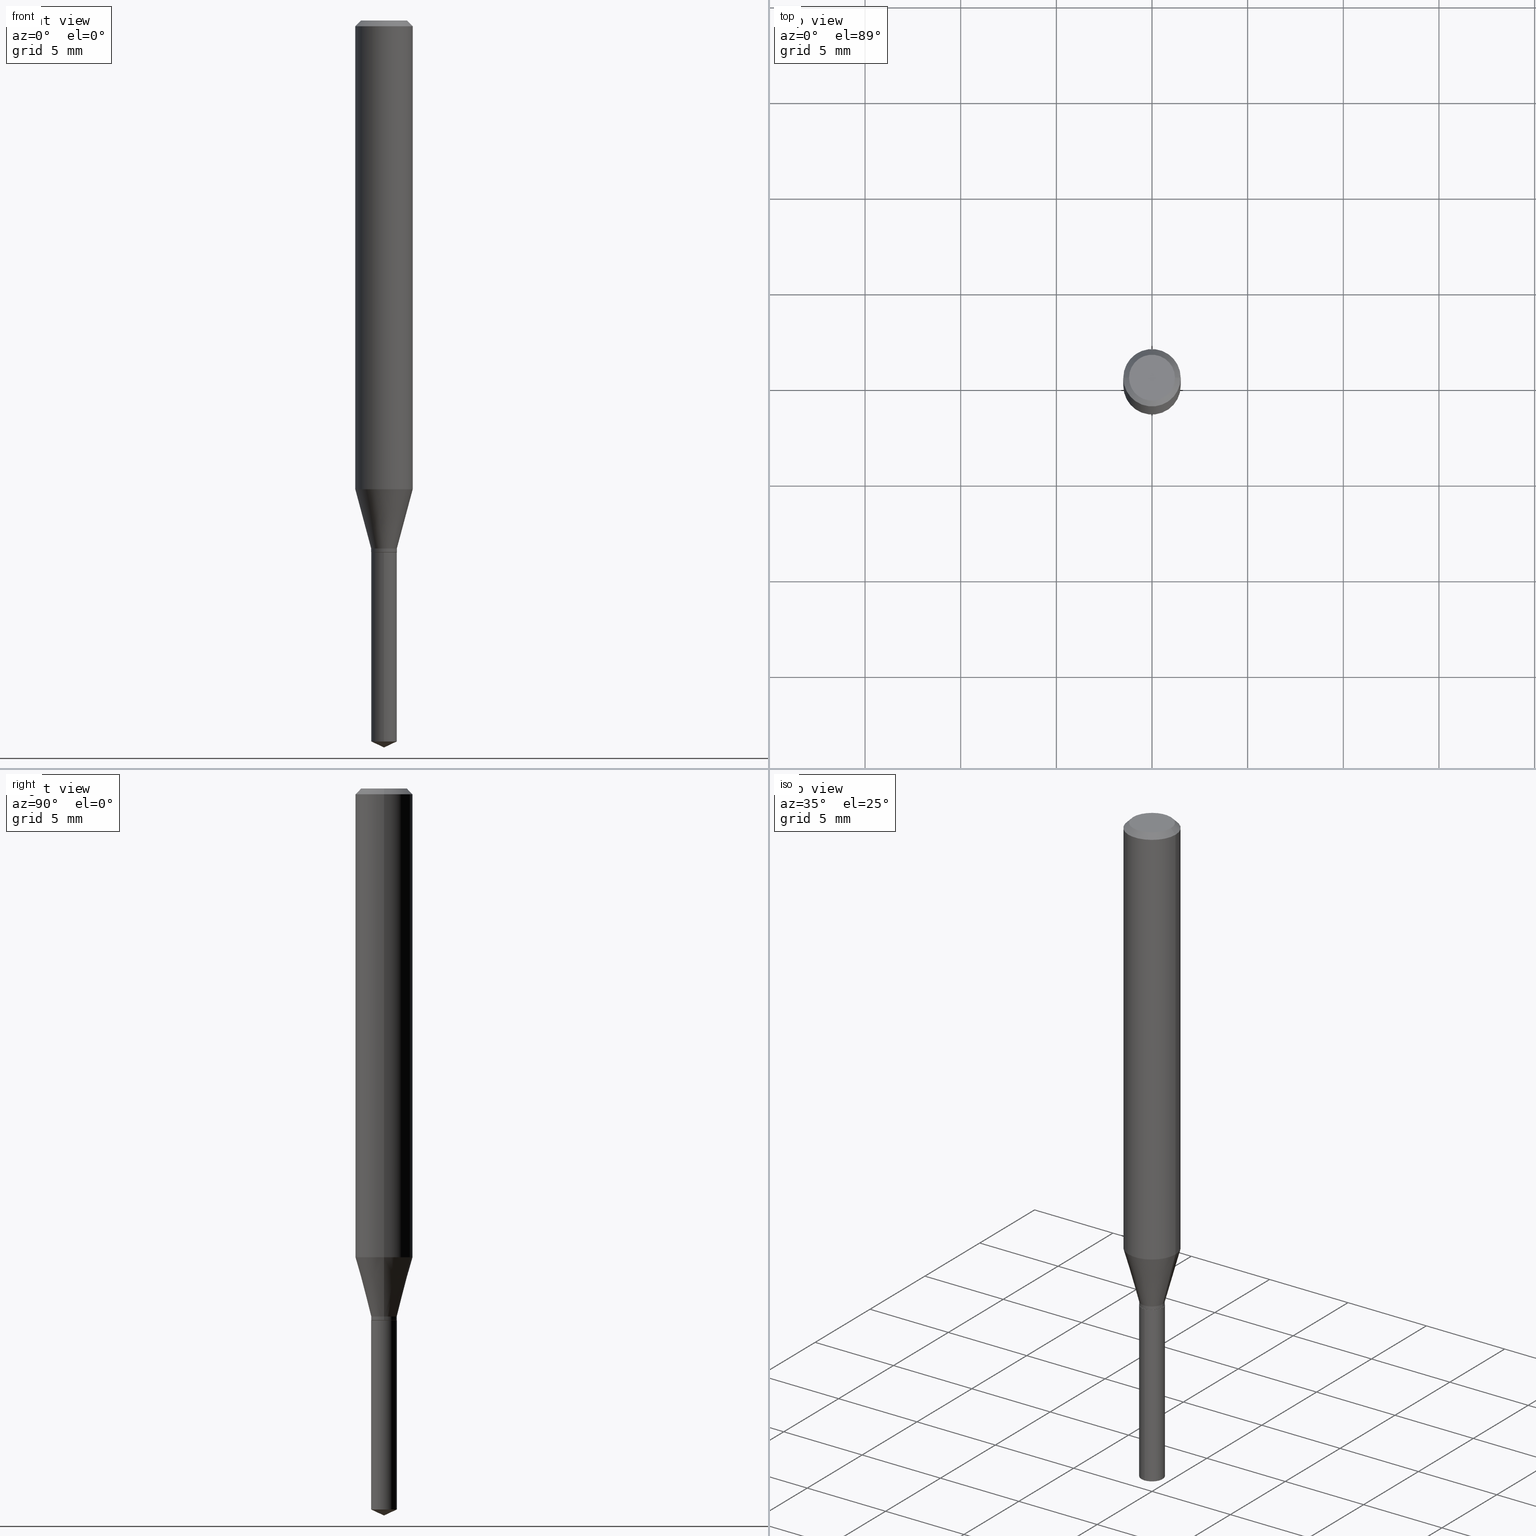
[diagram: canonical four-view strip — front | top / right | iso, engineering-drawing reading convention]
A machine part, canonical four-view strip (front | top / right | iso — engineering-drawing reading convention). The complete STEP part file that produces these views, byte-faithful:
ISO-10303-21;
HEADER;
FILE_DESCRIPTION (( 'STEP AP203' ),
    '1' );
FILE_NAME ('07865.STEP',
    '2024-04-24T04:50:09',
    ( '' ),
    ( '' ),
    'SwSTEP 2.0',
    'SolidWorks 2023',
    '' );
FILE_SCHEMA (( 'CONFIG_CONTROL_DESIGN' ));
ENDSEC;

DATA;
#1 = AXIS2_PLACEMENT_3D ( 'NONE', #205, #361, #3 ) ;
#2 = LOCAL_TIME ( 0, 50, 8.000000000000000000, #82 ) ;
#3 = DIRECTION ( 'NONE',  ( -6.982962677686267499E-15, -1.000000000000000000, 3.520397390770424288E-15 ) ) ;
#4 = ORIENTED_EDGE ( 'NONE', *, *, #441, .F. ) ;
#5 = ORIENTED_EDGE ( 'NONE', *, *, #351, .F. ) ;
#6 = APPLICATION_CONTEXT ( 'configuration controlled 3d designs of mechanical parts and assemblies' ) ;
#7 = DIRECTION ( 'NONE',  ( -2.445468806185136597E-29, 3.491481338843145583E-15, 1.000000000000000000 ) ) ;
#8 = APPROVAL_DATE_TIME ( #372, #383 ) ;
#9 = AXIS2_PLACEMENT_3D ( 'NONE', #348, #12, #378 ) ;
#10 = CARTESIAN_POINT ( 'NONE',  ( 3.658664905062460986E-29, -5.223606628546217219E-15, -1.496099999999999985 ) ) ;
#11 = CARTESIAN_POINT ( 'NONE',  ( 8.265746106709734507E-48, -1.180129479067563789E-33, -3.380025165646692144E-19 ) ) ;
#12 = DIRECTION ( 'NONE',  ( -2.445470214571802116E-29, 3.491479321953280158E-15, 1.000000000000000000 ) ) ;
#13 = APPROVAL_DATE_TIME ( #472, #78 ) ;
#14 = AXIS2_PLACEMENT_3D ( 'NONE', #257, #40, #86 ) ;
#15 = ADVANCED_FACE ( 'NONE', ( #215 ), #136, .T. ) ;
#16 = FACE_OUTER_BOUND ( 'NONE', #206, .T. ) ;
#17 = ORIENTED_EDGE ( 'NONE', *, *, #412, .F. ) ;
#18 = CARTESIAN_POINT ( 'NONE',  ( 2.676565608369631794E-29, -3.821426325363822773E-15, -1.094499999999999806 ) ) ;
#19 = PERSON_AND_ORGANIZATION ( #188, #390 ) ;
#20 = CARTESIAN_POINT ( 'NONE',  ( -0.02589999999999999594, -3.637395756801957372E-15, -1.094500000000000028 ) ) ;
#21 = CARTESIAN_POINT ( 'NONE',  ( -0.02639999999999999986, -3.606260340546295139E-15, -1.086600000000000010 ) ) ;
#22 = CC_DESIGN_SECURITY_CLASSIFICATION ( #446, ( #43 ) ) ;
#23 = AXIS2_PLACEMENT_3D ( 'NONE', #106, #414, #254 ) ;
#24 = VECTOR ( 'NONE', #273, 39.37007874015748143 ) ;
#25 = CARTESIAN_POINT ( 'NONE',  ( 8.265746106709734507E-48, -1.180129479067563789E-33, -3.380025165646692144E-19 ) ) ;
#26 = ADVANCED_FACE ( 'NONE', ( #294 ), #332, .T. ) ;
#27 = DIRECTION ( 'NONE',  ( -1.000000000000000000, 6.982962677686266711E-15, 0.000000000000000000 ) ) ;
#28 = EDGE_LOOP ( 'NONE', ( #285, #357, #142, #399 ) ) ;
#29 = ORIENTED_EDGE ( 'NONE', *, *, #31, .F. ) ;
#30 =( NAMED_UNIT ( * ) PLANE_ANGLE_UNIT ( ) SI_UNIT ( $, .RADIAN. ) );
#31 = EDGE_CURVE ( 'NONE', #138, #259, #226, .T. ) ;
#32 = EDGE_LOOP ( 'NONE', ( #224, #208, #370, #435 ) ) ;
#33 = ORIENTED_EDGE ( 'NONE', *, *, #290, .F. ) ;
#34 = APPLICATION_PROTOCOL_DEFINITION ( 'international standard', 'config_control_design', 1994, #6 ) ;
#35 = EDGE_LOOP ( 'NONE', ( #214, #362, #241, #131 ) ) ;
#36 = ORIENTED_EDGE ( 'NONE', *, *, #173, .F. ) ;
#37 = CONICAL_SURFACE ( 'NONE', #258, 84.42940631927504569, 1.134464013796319115 ) ;
#38 = ADVANCED_FACE ( 'NONE', ( #317 ), #388, .T. ) ;
#39 = CARTESIAN_POINT ( 'NONE',  ( -9.261968845786000133E-28, 1.322362114038720264E-13, 37.87397874015748300 ) ) ;
#40 = DIRECTION ( 'NONE',  ( -2.445468806185136597E-29, 3.491481338843145583E-15, 1.000000000000000000 ) ) ;
#41 = EDGE_CURVE ( 'NONE', #259, #288, #442, .T. ) ;
#42 = VECTOR ( 'NONE', #354, 39.37007874015748854 ) ;
#43 = PRODUCT_DEFINITION_FORMATION_WITH_SPECIFIED_SOURCE ( 'ANY', '', #50, .NOT_KNOWN. ) ;
#44 = DIRECTION ( 'NONE',  ( 1.000000000000000000, -6.982962677686266711E-15, 0.000000000000000000 ) ) ;
#45 = FACE_OUTER_BOUND ( 'NONE', #32, .T. ) ;
#46 = CYLINDRICAL_SURFACE ( 'NONE', #242, 0.05905000000000006077 ) ;
#47 = ORIENTED_EDGE ( 'NONE', *, *, #298, .T. ) ;
#48 = EDGE_CURVE ( 'NONE', #453, #419, #473, .T. ) ;
#49 = CARTESIAN_POINT ( 'NONE',  ( 2.657246404800769118E-29, -3.793843622786962228E-15, -1.086600000000000010 ) ) ;
#50 = PRODUCT ( '07865', '07865', '', ( #245 ) ) ;
#51 = VECTOR ( 'NONE', #488, 39.37007874015748143 ) ;
#52 = SECURITY_CLASSIFICATION_LEVEL ( 'unclassified' ) ;
#53 = CARTESIAN_POINT ( 'NONE',  ( -0.02639999999999999986, 1.875832822406664480E-16, -1.298598863827294983E-30 ) ) ;
#54 = APPROVAL_DATE_TIME ( #393, #129 ) ;
#55 = CARTESIAN_POINT ( 'NONE',  ( 0.02639999999999999986, -3.978193837477879316E-15, -1.086600000000000010 ) ) ;
#56 = DIRECTION ( 'NONE',  ( 1.000000000000000000, -6.982962677686269866E-15, 0.000000000000000000 ) ) ;
#57 = EDGE_LOOP ( 'NONE', ( #98, #287, #256, #437 ) ) ;
#58 = DIRECTION ( 'NONE',  ( -2.445470214571802116E-29, 3.491479321953280158E-15, 1.000000000000000000 ) ) ;
#59 = EDGE_CURVE ( 'NONE', #443, #73, #265, .T. ) ;
#60 = ADVANCED_FACE ( 'NONE', ( #148 ), #46, .T. ) ;
#61 = CARTESIAN_POINT ( 'NONE',  ( 0.02639999999999999986, -1.843502146909174575E-16, 1.287310668810126941E-30 ) ) ;
#62 = DIRECTION ( 'NONE',  ( -2.445468806185136597E-29, 3.491481338843145583E-15, 1.000000000000000000 ) ) ;
#63 = DIRECTION ( 'NONE',  ( -2.445468806185136597E-29, 3.491481338843145583E-15, 1.000000000000000000 ) ) ;
#64 = CONICAL_SURFACE ( 'NONE', #71, 0.02639999999999999986, 0.2617993877991500740 ) ;
#65 = CARTESIAN_POINT ( 'NONE',  ( 0.02639999999999999986, -3.978193837477879316E-15, -1.086600000000000010 ) ) ;
#66 = APPROVAL_PERSON_ORGANIZATION ( #108, #129, #427 ) ;
#67 = CYLINDRICAL_SURFACE ( 'NONE', #237, 0.02639999999999999986 ) ;
#68 = DIRECTION ( 'NONE',  ( 1.000000000000000000, -6.982962677686265922E-15, 4.876176775795935793E-29 ) ) ;
#69 = LINE ( 'NONE', #61, #24 ) ;
#70 = VERTEX_POINT ( 'NONE', #451 ) ;
#71 = AXIS2_PLACEMENT_3D ( 'NONE', #49, #187, #345 ) ;
#72 = PRODUCT_RELATED_PRODUCT_CATEGORY ( 'detail', '', ( #50 ) ) ;
#73 = VERTEX_POINT ( 'NONE', #296 ) ;
#74 = UNCERTAINTY_MEASURE_WITH_UNIT (LENGTH_MEASURE( 1.000000000000000082E-05 ), #282, 'distance_accuracy_value', 'NONE');
#75 = PERSON_AND_ORGANIZATION ( #188, #390 ) ;
#76 = CARTESIAN_POINT ( 'NONE',  ( 2.676565608369632355E-29, -3.821426325363822773E-15, -1.094500000000000028 ) ) ;
#77 = EDGE_LOOP ( 'NONE', ( #406, #209, #17 ) ) ;
#78 = APPROVAL ( #349, 'UNSPECIFIED' ) ;
#79 = AXIS2_PLACEMENT_3D ( 'NONE', #297, #125, #88 ) ;
#80 = DIRECTION ( 'NONE',  ( 1.000000000000000000, -6.982962677686270655E-15, 0.000000000000000000 ) ) ;
#81 = LINE ( 'NONE', #147, #192 ) ;
#82 = COORDINATED_UNIVERSAL_TIME_OFFSET ( 5, 0, .BEHIND. ) ;
#83 = EDGE_CURVE ( 'NONE', #419, #284, #216, .T. ) ;
#84 = DIRECTION ( 'NONE',  ( -2.445470214571802116E-29, 3.491479321953280158E-15, 1.000000000000000000 ) ) ;
#85 = DIRECTION ( 'NONE',  ( -6.982962677686265133E-15, -1.000000000000000000, 5.173954533455043885E-15 ) ) ;
#86 = DIRECTION ( 'NONE',  ( 1.000000000000000000, -6.982962677686269866E-15, 0.000000000000000000 ) ) ;
#87 = PERSON_AND_ORGANIZATION_ROLE ( 'creator' ) ;
#88 = DIRECTION ( 'NONE',  ( -1.000000000000000000, 6.982962677686266711E-15, 0.000000000000000000 ) ) ;
#89 = DIRECTION ( 'NONE',  ( -2.445470214571802116E-29, 3.491479321953280158E-15, 1.000000000000000000 ) ) ;
#90 = CARTESIAN_POINT ( 'NONE',  ( 3.628561431236165561E-29, -5.180622487442780866E-15, -1.483789477824708047 ) ) ;
#91 = DIRECTION ( 'NONE',  ( -2.445468806185136597E-29, 3.491481338843145583E-15, 1.000000000000000000 ) ) ;
#92 = DIRECTION ( 'NONE',  ( 2.445468806185136597E-29, -3.491481338843145583E-15, -1.000000000000000000 ) ) ;
#93 = CARTESIAN_POINT ( 'NONE',  ( 0.02589999999999999594, -4.002285058715897643E-15, -1.094500000000000028 ) ) ;
#94 = CIRCLE ( 'NONE', #474, 0.02589999999999999594 ) ;
#95 = CARTESIAN_POINT ( 'NONE',  ( -0.05905000000000013016, -2.948826042575245259E-15, -0.9647485411328760030 ) ) ;
#96 = ADVANCED_FACE ( 'NONE', ( #336 ), #160, .T. ) ;
#97 = ORIENTED_EDGE ( 'NONE', *, *, #179, .F. ) ;
#98 = ORIENTED_EDGE ( 'NONE', *, *, #426, .F. ) ;
#99 = ORIENTED_EDGE ( 'NONE', *, *, #260, .F. ) ;
#100 = AXIS2_PLACEMENT_3D ( 'NONE', #482, #225, #309 ) ;
#101 = ORIENTED_EDGE ( 'NONE', *, *, #83, .F. ) ;
#102 = EDGE_CURVE ( 'NONE', #476, #70, #377, .T. ) ;
#103 = CARTESIAN_POINT ( 'NONE',  ( 0.000000000000000000, 0.000000000000000000, 0.000000000000000000 ) ) ;
#104 = FACE_OUTER_BOUND ( 'NONE', #247, .T. ) ;
#105 = AXIS2_PLACEMENT_3D ( 'NONE', #76, #401, #261 ) ;
#106 = CARTESIAN_POINT ( 'NONE',  ( 2.657246404800769118E-29, -3.793843622786962228E-15, -1.086600000000000010 ) ) ;
#107 = DATE_TIME_ROLE ( 'classification_date' ) ;
#108 = PERSON_AND_ORGANIZATION ( #188, #390 ) ;
#109 = CARTESIAN_POINT ( 'NONE',  ( 2.676565608369631794E-29, -3.821426325363822773E-15, -1.094499999999999806 ) ) ;
#110 = SHAPE_DEFINITION_REPRESENTATION ( #313, #250 ) ;
#111 = CIRCLE ( 'NONE', #376, 0.02639999999999999986 ) ;
#112 = APPROVAL_PERSON_ORGANIZATION ( #422, #383, #331 ) ;
#113 = PLANE ( 'NONE',  #137 ) ;
#114 = PERSON_AND_ORGANIZATION_ROLE ( 'design_supplier' ) ;
#115 = CARTESIAN_POINT ( 'NONE',  ( -0.05904999999999999832, -1.285242475860321155E-15, -0.01181000000000007218 ) ) ;
#116 = CALENDAR_DATE ( 2024, 24, 4 ) ;
#117 = LINE ( 'NONE', #21, #266 ) ;
#118 = CIRCLE ( 'NONE', #151, 0.04724000000000000421 ) ;
#119 = ADVANCED_FACE ( 'NONE', ( #104 ), #459, .F. ) ;
#120 = COORDINATED_UNIVERSAL_TIME_OFFSET ( 5, 0, .BEHIND. ) ;
#121 = CYLINDRICAL_SURFACE ( 'NONE', #169, 0.02639999999999999986 ) ;
#122 = DIRECTION ( 'NONE',  ( -6.982962677686265133E-15, -1.000000000000000000, 0.000000000000000000 ) ) ;
#123 = CC_DESIGN_PERSON_AND_ORGANIZATION_ASSIGNMENT ( #346, #87, ( #43 ) ) ;
#124 = CARTESIAN_POINT ( 'NONE',  ( 1.875832822406931707E-16, 0.02639999999999617999, -1.094500000000000028 ) ) ;
#125 = DIRECTION ( 'NONE',  ( 2.445468806185136597E-29, -3.491481338843145583E-15, -1.000000000000000000 ) ) ;
#126 = VERTEX_POINT ( 'NONE', #329 ) ;
#127 = ORIENTED_EDGE ( 'NONE', *, *, #290, .T. ) ;
#128 =( GEOMETRIC_REPRESENTATION_CONTEXT ( 3 ) GLOBAL_UNCERTAINTY_ASSIGNED_CONTEXT ( ( #74 ) ) GLOBAL_UNIT_ASSIGNED_CONTEXT ( ( #282, #30, #324 ) ) REPRESENTATION_CONTEXT ( 'NONE', 'WORKASPACE' ) );
#129 = APPROVAL ( #229, 'UNSPECIFIED' ) ;
#130 = ORIENTED_EDGE ( 'NONE', *, *, #465, .F. ) ;
#131 = ORIENTED_EDGE ( 'NONE', *, *, #204, .F. ) ;
#132 = DIRECTION ( 'NONE',  ( 0.000000000000000000, 0.000000000000000000, 1.000000000000000000 ) ) ;
#133 = VERTEX_POINT ( 'NONE', #251 ) ;
#134 = ADVANCED_FACE ( 'NONE', ( #457 ), #37, .T. ) ;
#135 = ORIENTED_EDGE ( 'NONE', *, *, #292, .T. ) ;
#136 = CONICAL_SURFACE ( 'NONE', #320, 0.02589999999999999594, 0.7853981633972775267 ) ;
#137 = AXIS2_PLACEMENT_3D ( 'NONE', #423, #153, #307 ) ;
#138 = VERTEX_POINT ( 'NONE', #139 ) ;
#139 = CARTESIAN_POINT ( 'NONE',  ( 0.04724000000000000421, -3.852183633974369345E-16, -3.380025165621689721E-19 ) ) ;
#140 = VERTEX_POINT ( 'NONE', #369 ) ;
#141 = DIRECTION ( 'NONE',  ( -2.445468806185136597E-29, 3.491481338843145583E-15, 1.000000000000000000 ) ) ;
#142 = ORIENTED_EDGE ( 'NONE', *, *, #59, .F. ) ;
#143 = CARTESIAN_POINT ( 'NONE',  ( 2.657246404800769118E-29, -3.793843622786962228E-15, -1.086600000000000010 ) ) ;
#144 = CIRCLE ( 'NONE', #183, 0.05904999999999999832 ) ;
#145 = CC_DESIGN_APPROVAL ( #129, ( #218 ) ) ;
#146 = CC_DESIGN_PERSON_AND_ORGANIZATION_ASSIGNMENT ( #193, #308, ( #446 ) ) ;
#147 = CARTESIAN_POINT ( 'NONE',  ( -1.843502146908906609E-16, -0.02640000000000381972, -1.094499999999999806 ) ) ;
#148 = FACE_OUTER_BOUND ( 'NONE', #177, .T. ) ;
#149 = CC_DESIGN_PERSON_AND_ORGANIZATION_ASSIGNMENT ( #19, #424, ( #218 ) ) ;
#150 = CLOSED_SHELL ( 'NONE', ( #212, #134, #481, #314, #119 ) ) ;
#151 = AXIS2_PLACEMENT_3D ( 'NONE', #25, #162, #277 ) ;
#152 = DIRECTION ( 'NONE',  ( -2.445468806185136597E-29, 3.491481338843145583E-15, 1.000000000000000000 ) ) ;
#153 = DIRECTION ( 'NONE',  ( 2.438088387897960049E-29, -3.491481338843145188E-15, -1.000000000000000000 ) ) ;
#154 = COORDINATED_UNIVERSAL_TIME_OFFSET ( 5, 0, .BEHIND. ) ;
#155 = FACE_OUTER_BOUND ( 'NONE', #28, .T. ) ;
#156 = ORIENTED_EDGE ( 'NONE', *, *, #168, .F. ) ;
#157 = EDGE_CURVE ( 'NONE', #73, #443, #278, .T. ) ;
#158 = CARTESIAN_POINT ( 'NONE',  ( 1.875832822407027356E-16, 0.02639999999999481997, -1.483789477824708047 ) ) ;
#159 = DIRECTION ( 'NONE',  ( -2.445470214571802116E-29, 3.491479321953280158E-15, 1.000000000000000000 ) ) ;
#160 = CONICAL_SURFACE ( 'NONE', #23, 0.02639999999999999986, 0.2617993877991500740 ) ;
#161 = AXIS2_PLACEMENT_3D ( 'NONE', #223, #63, #432 ) ;
#162 = DIRECTION ( 'NONE',  ( -2.445468806185136597E-29, 3.491481338843145583E-15, 1.000000000000000000 ) ) ;
#163 = DIRECTION ( 'NONE',  ( 1.000000000000000000, -6.982962677686266711E-15, 0.000000000000000000 ) ) ;
#164 = ORIENTED_EDGE ( 'NONE', *, *, #323, .T. ) ;
#165 = DIRECTION ( 'NONE',  ( 0.2588190451025213501, 1.565188264969621968E-15, 0.9659258262890682012 ) ) ;
#166 = EDGE_LOOP ( 'NONE', ( #363, #47, #33, #36 ) ) ;
#167 = CARTESIAN_POINT ( 'NONE',  ( 0.05904999999999999832, -4.463468013801466955E-16, -0.01181000000000007218 ) ) ;
#168 = EDGE_CURVE ( 'NONE', #461, #126, #410, .T. ) ;
#169 = AXIS2_PLACEMENT_3D ( 'NONE', #477, #425, #202 ) ;
#170 = CC_DESIGN_APPROVAL ( #78, ( #43 ) ) ;
#171 = DIRECTION ( 'NONE',  ( -2.445468806185136597E-29, 3.491481338843145583E-15, 1.000000000000000000 ) ) ;
#172 = ORIENTED_EDGE ( 'NONE', *, *, #426, .T. ) ;
#173 = EDGE_CURVE ( 'NONE', #126, #140, #81, .T. ) ;
#174 = ORIENTED_EDGE ( 'NONE', *, *, #157, .F. ) ;
#175 = ORIENTED_EDGE ( 'NONE', *, *, #412, .T. ) ;
#176 = AXIS2_PLACEMENT_3D ( 'NONE', #392, #337, #430 ) ;
#177 = EDGE_LOOP ( 'NONE', ( #135, #326, #97, #101 ) ) ;
#178 = LENGTH_MEASURE_WITH_UNIT ( LENGTH_MEASURE( 0.02539999999999999897 ), #365 );
#179 = EDGE_CURVE ( 'NONE', #284, #288, #144, .T. ) ;
#180 = DIRECTION ( 'NONE',  ( -2.445468806185136877E-29, 3.491481338843145188E-15, 1.000000000000000000 ) ) ;
#181 = DIRECTION ( 'NONE',  ( -6.328713451373382789E-15, -0.9063077870366504918, 0.4226182617406981090 ) ) ;
#182 = AXIS2_PLACEMENT_3D ( 'NONE', #479, #91, #238 ) ;
#183 = AXIS2_PLACEMENT_3D ( 'NONE', #454, #299, #44 ) ;
#184 = APPROVAL_PERSON_ORGANIZATION ( #431, #78, #339 ) ;
#185 = ORIENTED_EDGE ( 'NONE', *, *, #173, .T. ) ;
#186 = CARTESIAN_POINT ( 'NONE',  ( 0.000000000000000000, 0.000000000000000000, 0.000000000000000000 ) ) ;
#187 = DIRECTION ( 'NONE',  ( -2.445468806185136597E-29, 3.491481338843145583E-15, 1.000000000000000000 ) ) ;
#188 = PERSON ( 'UNSPECIFIED', 'UNSPECIFIED', 'UNSPECIFIED', ('UNSPECIFIED'), ('UNSPECIFIED'), ('UNSPECIFIED') ) ;
#189 = DIRECTION ( 'NONE',  ( 0.7071067811864267805, -2.468850131080992517E-15, 0.7071067811866682540 ) ) ;
#190 = VECTOR ( 'NONE', #181, 39.37007874015748854 ) ;
#191 = DATE_AND_TIME ( #116, #201 ) ;
#192 = VECTOR ( 'NONE', #293, 39.37007874015748143 ) ;
#193 = PERSON_AND_ORGANIZATION ( #188, #390 ) ;
#194 = LINE ( 'NONE', #233, #42 ) ;
#195 = CARTESIAN_POINT ( 'NONE',  ( 2.676565608369631794E-29, -3.821426325363822773E-15, -1.094499999999999806 ) ) ;
#196 = DATE_AND_TIME ( #269, #222 ) ;
#197 = DIRECTION ( 'NONE',  ( -0.7071067811864267805, 7.493145998869918709E-15, 0.7071067811866682540 ) ) ;
#198 = DIRECTION ( 'NONE',  ( -2.445468806185136597E-29, 3.491481338843145583E-15, 1.000000000000000000 ) ) ;
#199 = AXIS2_PLACEMENT_3D ( 'NONE', #386, #152, #56 ) ;
#200 = CARTESIAN_POINT ( 'NONE',  ( 2.359262463153066323E-29, -3.368401528041585540E-15, -0.9647485411328760030 ) ) ;
#201 = LOCAL_TIME ( 0, 50, 8.000000000000000000, #467 ) ;
#202 = DIRECTION ( 'NONE',  ( 1.000000000000000000, -6.982962677686267499E-15, 4.876176775795935232E-29 ) ) ;
#203 = CARTESIAN_POINT ( 'NONE',  ( 2.676565608369631794E-29, -3.821426325363822773E-15, -1.094499999999999806 ) ) ;
#204 = EDGE_CURVE ( 'NONE', #288, #284, #207, .T. ) ;
#205 = CARTESIAN_POINT ( 'NONE',  ( -9.261968845786000133E-28, 1.322362114038720264E-13, 37.87397874015748300 ) ) ;
#206 = EDGE_LOOP ( 'NONE', ( #409, #480 ) ) ;
#207 = CIRCLE ( 'NONE', #161, 0.05904999999999999832 ) ;
#208 = ORIENTED_EDGE ( 'NONE', *, *, #157, .T. ) ;
#209 = ORIENTED_EDGE ( 'NONE', *, *, #168, .T. ) ;
#210 = PERSON_AND_ORGANIZATION_ROLE ( 'design_owner' ) ;
#211 = ORIENTED_EDGE ( 'NONE', *, *, #231, .T. ) ;
#212 = ADVANCED_FACE ( 'NONE', ( #301 ), #305, .T. ) ;
#213 = ORIENTED_EDGE ( 'NONE', *, *, #330, .F. ) ;
#214 = ORIENTED_EDGE ( 'NONE', *, *, #445, .F. ) ;
#215 = FACE_OUTER_BOUND ( 'NONE', #449, .T. ) ;
#216 = LINE ( 'NONE', #456, #374 ) ;
#217 = CIRCLE ( 'NONE', #295, 0.02639999999999999986 ) ;
#218 = PRODUCT_DEFINITION ( 'UNKNOWN', '', #43, #267 ) ;
#219 = CARTESIAN_POINT ( 'NONE',  ( 0.000000000000000000, 0.000000000000000000, 0.000000000000000000 ) ) ;
#220 = DIRECTION ( 'NONE',  ( -2.445468806185136597E-29, 3.491481338843145583E-15, 1.000000000000000000 ) ) ;
#221 = CC_DESIGN_APPROVAL ( #383, ( #446 ) ) ;
#222 = LOCAL_TIME ( 0, 50, 8.000000000000000000, #154 ) ;
#223 = CARTESIAN_POINT ( 'NONE',  ( 2.888098660104664204E-31, -4.123439461173780263E-17, -0.01181000000000007218 ) ) ;
#224 = ORIENTED_EDGE ( 'NONE', *, *, #252, .F. ) ;
#225 = DIRECTION ( 'NONE',  ( -2.445468806185136597E-29, 3.491481338843145583E-15, 1.000000000000000000 ) ) ;
#226 = CIRCLE ( 'NONE', #235, 0.04724000000000000421 ) ;
#227 = AXIS2_PLACEMENT_3D ( 'NONE', #279, #198, #316 ) ;
#228 = DIRECTION ( 'NONE',  ( -0.2588190451025213501, 5.211531920934551042E-15, 0.9659258262890682012 ) ) ;
#229 = APPROVAL_STATUS ( 'not_yet_approved' ) ;
#230 = CARTESIAN_POINT ( 'NONE',  ( 2.888098660104664204E-31, -4.123439461173780263E-17, -0.01181000000000007218 ) ) ;
#231 = EDGE_CURVE ( 'NONE', #133, #140, #411, .T. ) ;
#232 = ORIENTED_EDGE ( 'NONE', *, *, #252, .T. ) ;
#233 = CARTESIAN_POINT ( 'NONE',  ( 3.658668015054778287E-29, -5.223602213574301462E-15, -1.496099999999999985 ) ) ;
#234 = DIRECTION ( 'NONE',  ( -2.445468806185136597E-29, 3.491481338843145583E-15, 1.000000000000000000 ) ) ;
#235 = AXIS2_PLACEMENT_3D ( 'NONE', #11, #62, #471 ) ;
#236 = EDGE_CURVE ( 'NONE', #408, #70, #280, .T. ) ;
#237 = AXIS2_PLACEMENT_3D ( 'NONE', #203, #384, #327 ) ;
#238 = DIRECTION ( 'NONE',  ( 1.000000000000000000, -6.982962677686270655E-15, 0.000000000000000000 ) ) ;
#239 = FACE_OUTER_BOUND ( 'NONE', #77, .T. ) ;
#240 = EDGE_LOOP ( 'NONE', ( #335, #232, #403, #4 ) ) ;
#241 = ORIENTED_EDGE ( 'NONE', *, *, #83, .T. ) ;
#242 = AXIS2_PLACEMENT_3D ( 'NONE', #186, #220, #418 ) ;
#243 = CONICAL_SURFACE ( 'NONE', #367, 0.05904999999999999832, 0.7853981633974452814 ) ;
#244 = VERTEX_POINT ( 'NONE', #158 ) ;
#245 = MECHANICAL_CONTEXT ( 'NONE', #385, 'mechanical' ) ;
#246 = CC_DESIGN_DATE_AND_TIME_ASSIGNMENT ( #191, #107, ( #446 ) ) ;
#247 = EDGE_LOOP ( 'NONE', ( #127, #211 ) ) ;
#248 = EDGE_LOOP ( 'NONE', ( #402, #404, #99, #341 ) ) ;
#249 = DIRECTION ( 'NONE',  ( 1.000000000000000000, 0.000000000000000000, 0.000000000000000000 ) ) ;
#250 = ADVANCED_BREP_SHAPE_REPRESENTATION ( '07865', ( #382, #371, #470 ), #128 ) ;
#251 = CARTESIAN_POINT ( 'NONE',  ( 1.875832822407027356E-16, 0.02639999999999617999, -1.094500000000000028 ) ) ;
#252 = EDGE_CURVE ( 'NONE', #73, #453, #117, .T. ) ;
#253 = CONICAL_SURFACE ( 'NONE', #79, 0.05904999999999999832, 0.7853981633974452814 ) ;
#254 = DIRECTION ( 'NONE',  ( 1.000000000000000000, -6.982962677686269866E-15, 0.000000000000000000 ) ) ;
#255 = ADVANCED_FACE ( 'NONE', ( #45 ), #64, .T. ) ;
#256 = ORIENTED_EDGE ( 'NONE', *, *, #41, .T. ) ;
#257 = CARTESIAN_POINT ( 'NONE',  ( 2.657246404800769118E-29, -3.793843622786962228E-15, -1.086600000000000010 ) ) ;
#258 = AXIS2_PLACEMENT_3D ( 'NONE', #39, #84, #338 ) ;
#259 = VERTEX_POINT ( 'NONE', #310 ) ;
#260 = EDGE_CURVE ( 'NONE', #70, #408, #448, .T. ) ;
#261 = DIRECTION ( 'NONE',  ( 1.000000000000000000, -6.982962677686270655E-15, 0.000000000000000000 ) ) ;
#262 = DATE_TIME_ROLE ( 'creation_date' ) ;
#263 = CYLINDRICAL_SURFACE ( 'NONE', #100, 0.05905000000000006077 ) ;
#264 = LINE ( 'NONE', #53, #455 ) ;
#265 = CIRCLE ( 'NONE', #439, 0.02639999999999999986 ) ;
#266 = VECTOR ( 'NONE', #228, 39.37007874015747433 ) ;
#267 = DESIGN_CONTEXT ( 'detailed design', #6, 'design' ) ;
#268 = DIRECTION ( 'NONE',  ( -6.982962677686265133E-15, -1.000000000000000000, 5.173954533455043885E-15 ) ) ;
#269 = CALENDAR_DATE ( 2024, 24, 4 ) ;
#270 = DIRECTION ( 'NONE',  ( 0.7071067811865453523, -7.319954787623248157E-15, -0.7071067811865496822 ) ) ;
#271 = DIRECTION ( 'NONE',  ( -6.982962677686265133E-15, -1.000000000000000000, 0.000000000000000000 ) ) ;
#272 = VERTEX_POINT ( 'NONE', #462 ) ;
#273 = DIRECTION ( 'NONE',  ( -2.445468806185136877E-29, 3.491481338843145188E-15, 1.000000000000000000 ) ) ;
#274 = CC_DESIGN_PERSON_AND_ORGANIZATION_ASSIGNMENT ( #464, #114, ( #43 ) ) ;
#275 = FACE_OUTER_BOUND ( 'NONE', #489, .T. ) ;
#276 = ORIENTED_EDGE ( 'NONE', *, *, #407, .T. ) ;
#277 = DIRECTION ( 'NONE',  ( 1.000000000000000000, -6.982962677686266711E-15, 4.876185090822587894E-29 ) ) ;
#278 = CIRCLE ( 'NONE', #14, 0.02639999999999999986 ) ;
#279 = CARTESIAN_POINT ( 'NONE',  ( 2.359262463153066323E-29, -3.368401528041585540E-15, -0.9647485411328760030 ) ) ;
#280 = CIRCLE ( 'NONE', #199, 0.02639999999999999986 ) ;
#281 = ORIENTED_EDGE ( 'NONE', *, *, #415, .F. ) ;
#282 =( CONVERSION_BASED_UNIT ( 'INCH', #178 ) LENGTH_UNIT ( ) NAMED_UNIT ( #391 ) );
#283 = ADVANCED_FACE ( 'NONE', ( #16 ), #113, .F. ) ;
#284 = VERTEX_POINT ( 'NONE', #466 ) ;
#285 = ORIENTED_EDGE ( 'NONE', *, *, #260, .T. ) ;
#286 = AXIS2_PLACEMENT_3D ( 'NONE', #109, #416, #334 ) ;
#287 = ORIENTED_EDGE ( 'NONE', *, *, #452, .F. ) ;
#288 = VERTEX_POINT ( 'NONE', #115 ) ;
#289 = DIRECTION ( 'NONE',  ( 1.000000000000000000, -6.982962677686269866E-15, 0.000000000000000000 ) ) ;
#290 = EDGE_CURVE ( 'NONE', #140, #133, #217, .T. ) ;
#291 = EDGE_LOOP ( 'NONE', ( #281, #360, #164, #174 ) ) ;
#292 = EDGE_CURVE ( 'NONE', #419, #453, #321, .T. ) ;
#293 = DIRECTION ( 'NONE',  ( -2.445470214571802396E-29, 3.491479321953280158E-15, 1.000000000000000000 ) ) ;
#294 = FACE_OUTER_BOUND ( 'NONE', #291, .T. ) ;
#295 = AXIS2_PLACEMENT_3D ( 'NONE', #18, #469, #268 ) ;
#296 = CARTESIAN_POINT ( 'NONE',  ( -0.02639999999999999986, -3.619178821500014265E-15, -1.086600000000000010 ) ) ;
#297 = CARTESIAN_POINT ( 'NONE',  ( 2.888098660104664204E-31, -4.123439461173780263E-17, -0.01181000000000007218 ) ) ;
#298 = EDGE_CURVE ( 'NONE', #244, #133, #478, .T. ) ;
#299 = DIRECTION ( 'NONE',  ( -2.445468806185136597E-29, 3.491481338843145583E-15, 1.000000000000000000 ) ) ;
#300 = CARTESIAN_POINT ( 'NONE',  ( 0.02589999999999999594, -4.002285058715897643E-15, -1.094500000000000028 ) ) ;
#301 = FACE_OUTER_BOUND ( 'NONE', #166, .T. ) ;
#302 = AXIS2_PLACEMENT_3D ( 'NONE', #200, #171, #163 ) ;
#303 = AXIS2_PLACEMENT_3D ( 'NONE', #195, #89, #85 ) ;
#304 = CALENDAR_DATE ( 2024, 24, 4 ) ;
#305 = CYLINDRICAL_SURFACE ( 'NONE', #303, 0.02639999999999999986 ) ;
#306 = CC_DESIGN_PERSON_AND_ORGANIZATION_ASSIGNMENT ( #75, #210, ( #50 ) ) ;
#307 = DIRECTION ( 'NONE',  ( -1.000000000000000000, 6.982962677686265922E-15, -4.876176775795935793E-29 ) ) ;
#308 = PERSON_AND_ORGANIZATION_ROLE ( 'classification_officer' ) ;
#309 = DIRECTION ( 'NONE',  ( 1.000000000000000000, -6.982962677686266711E-15, 4.876176775795935793E-29 ) ) ;
#310 = CARTESIAN_POINT ( 'NONE',  ( -0.04724000000000000421, 3.504923541997677355E-16, -3.380025165670481712E-19 ) ) ;
#311 = COORDINATED_UNIVERSAL_TIME_OFFSET ( 5, 0, .BEHIND. ) ;
#312 = FACE_OUTER_BOUND ( 'NONE', #57, .T. ) ;
#313 = PRODUCT_DEFINITION_SHAPE ( 'NONE', 'NONE',  #218 ) ;
#314 = ADVANCED_FACE ( 'NONE', ( #275 ), #67, .T. ) ;
#315 = PLANE ( 'NONE',  #405 ) ;
#316 = DIRECTION ( 'NONE',  ( 1.000000000000000000, -6.982962677686266711E-15, 0.000000000000000000 ) ) ;
#317 = FACE_OUTER_BOUND ( 'NONE', #248, .T. ) ;
#318 = DIRECTION ( 'NONE',  ( -2.445468806185136877E-29, 3.491481338843145188E-15, 1.000000000000000000 ) ) ;
#319 = CARTESIAN_POINT ( 'NONE',  ( -1.354150932124930540E-29, -9.593641825490340057E-15, -1.094500000000000028 ) ) ;
#320 = AXIS2_PLACEMENT_3D ( 'NONE', #413, #141, #80 ) ;
#321 = CIRCLE ( 'NONE', #227, 0.05905000000000011628 ) ;
#322 = ORIENTED_EDGE ( 'NONE', *, *, #179, .T. ) ;
#323 = EDGE_CURVE ( 'NONE', #70, #443, #69, .T. ) ;
#324 =( NAMED_UNIT ( * ) SI_UNIT ( $, .STERADIAN. ) SOLID_ANGLE_UNIT ( ) );
#325 = EDGE_LOOP ( 'NONE', ( #213, #5 ) ) ;
#326 = ORIENTED_EDGE ( 'NONE', *, *, #445, .T. ) ;
#327 = DIRECTION ( 'NONE',  ( -6.982962677686265133E-15, -1.000000000000000000, 5.173954533455043885E-15 ) ) ;
#328 = APPLICATION_PROTOCOL_DEFINITION ( 'international standard', 'config_control_design', 1994, #385 ) ;
#329 = CARTESIAN_POINT ( 'NONE',  ( -1.843502146908811946E-16, -0.02640000000000519015, -1.483789477824708047 ) ) ;
#330 = EDGE_CURVE ( 'NONE', #476, #272, #486, .T. ) ;
#331 = APPROVAL_ROLE ( '' ) ;
#332 = CYLINDRICAL_SURFACE ( 'NONE', #463, 0.02639999999999999986 ) ;
#333 = VECTOR ( 'NONE', #270, 39.37007874015748143 ) ;
#334 = DIRECTION ( 'NONE',  ( 6.982962677686265922E-15, 1.000000000000000000, -3.491479321953280158E-15 ) ) ;
#335 = ORIENTED_EDGE ( 'NONE', *, *, #59, .T. ) ;
#336 = FACE_OUTER_BOUND ( 'NONE', #240, .T. ) ;
#337 = DIRECTION ( 'NONE',  ( -2.445468806185136597E-29, 3.491481338843145583E-15, 1.000000000000000000 ) ) ;
#338 = DIRECTION ( 'NONE',  ( -6.982962677686267499E-15, -1.000000000000000000, 3.520397390770424288E-15 ) ) ;
#339 = APPROVAL_ROLE ( '' ) ;
#340 = ADVANCED_FACE ( 'NONE', ( #436 ), #253, .T. ) ;
#341 = ORIENTED_EDGE ( 'NONE', *, *, #102, .F. ) ;
#342 = CLOSED_SHELL ( 'NONE', ( #38, #340, #60, #96, #400, #26, #255, #433, #381, #283, #458, #15 ) ) ;
#343 = AXIS2_PLACEMENT_3D ( 'NONE', #395, #58, #271 ) ;
#344 = CALENDAR_DATE ( 2024, 24, 4 ) ;
#345 = DIRECTION ( 'NONE',  ( 1.000000000000000000, -6.982962677686269866E-15, 0.000000000000000000 ) ) ;
#346 = PERSON_AND_ORGANIZATION ( #188, #390 ) ;
#347 = FACE_OUTER_BOUND ( 'NONE', #325, .T. ) ;
#348 = CARTESIAN_POINT ( 'NONE',  ( 2.676565608369631794E-29, -3.821426325363822773E-15, -1.094499999999999806 ) ) ;
#349 = APPROVAL_STATUS ( 'not_yet_approved' ) ;
#350 = DIRECTION ( 'NONE',  ( -2.445468806185136877E-29, 3.491481338843145188E-15, 1.000000000000000000 ) ) ;
#351 = EDGE_CURVE ( 'NONE', #272, #476, #94, .T. ) ;
#352 = LINE ( 'NONE', #65, #359 ) ;
#353 = CONICAL_SURFACE ( 'NONE', #1, 84.42940631927504569, 1.134464013796319115 ) ;
#354 = DIRECTION ( 'NONE',  ( 6.439704144417038242E-15, 0.9063077870366533784, 0.4226182617406917807 ) ) ;
#355 = ORIENTED_EDGE ( 'NONE', *, *, #41, .F. ) ;
#356 = DIRECTION ( 'NONE',  ( 1.000000000000000000, -6.982962677686270655E-15, 0.000000000000000000 ) ) ;
#357 = ORIENTED_EDGE ( 'NONE', *, *, #415, .T. ) ;
#358 = ORIENTED_EDGE ( 'NONE', *, *, #102, .T. ) ;
#359 = VECTOR ( 'NONE', #165, 39.37007874015747433 ) ;
#360 = ORIENTED_EDGE ( 'NONE', *, *, #236, .T. ) ;
#361 = DIRECTION ( 'NONE',  ( -2.445470214571802116E-29, 3.491479321953280158E-15, 1.000000000000000000 ) ) ;
#362 = ORIENTED_EDGE ( 'NONE', *, *, #48, .T. ) ;
#363 = ORIENTED_EDGE ( 'NONE', *, *, #465, .T. ) ;
#364 = ORIENTED_EDGE ( 'NONE', *, *, #421, .F. ) ;
#365 =( LENGTH_UNIT ( ) NAMED_UNIT ( * ) SI_UNIT ( $, .METRE. ) );
#366 = VECTOR ( 'NONE', #396, 39.37007874015748143 ) ;
#367 = AXIS2_PLACEMENT_3D ( 'NONE', #230, #92, #27 ) ;
#368 = ORIENTED_EDGE ( 'NONE', *, *, #236, .F. ) ;
#369 = CARTESIAN_POINT ( 'NONE',  ( -1.843502146908906609E-16, -0.02640000000000381972, -1.094499999999999806 ) ) ;
#370 = ORIENTED_EDGE ( 'NONE', *, *, #441, .T. ) ;
#371 = MANIFOLD_SOLID_BREP ( 'Body-Move/Copy2[2]', #342 ) ;
#372 = DATE_AND_TIME ( #344, #2 ) ;
#373 = LOCAL_TIME ( 0, 50, 8.000000000000000000, #120 ) ;
#374 = VECTOR ( 'NONE', #180, 39.37007874015748143 ) ;
#375 = DIRECTION ( 'NONE',  ( 1.000000000000000000, -6.982962677686267499E-15, 4.876176775795935232E-29 ) ) ;
#376 = AXIS2_PLACEMENT_3D ( 'NONE', #90, #159, #122 ) ;
#377 = LINE ( 'NONE', #300, #447 ) ;
#378 = DIRECTION ( 'NONE',  ( -6.982962677686265133E-15, -1.000000000000000000, 5.173954533455043885E-15 ) ) ;
#379 = EDGE_LOOP ( 'NONE', ( #156, #276, #130 ) ) ;
#380 = DIRECTION ( 'NONE',  ( -2.445468806185136597E-29, 3.491481338843145583E-15, 1.000000000000000000 ) ) ;
#381 = ADVANCED_FACE ( 'NONE', ( #312 ), #243, .T. ) ;
#382 = MANIFOLD_SOLID_BREP ( 'Body-Move/Copy2[1]', #150 ) ;
#383 = APPROVAL ( #417, 'UNSPECIFIED' ) ;
#384 = DIRECTION ( 'NONE',  ( -2.445470214571802116E-29, 3.491479321953280158E-15, 1.000000000000000000 ) ) ;
#385 = APPLICATION_CONTEXT ( 'configuration controlled 3d designs of mechanical parts and assemblies' ) ;
#386 = CARTESIAN_POINT ( 'NONE',  ( 2.675342873966538993E-29, -3.819680584694400481E-15, -1.093999999999999861 ) ) ;
#387 = CALENDAR_DATE ( 2024, 24, 4 ) ;
#388 = CONICAL_SURFACE ( 'NONE', #182, 0.02589999999999999594, 0.7853981633972775267 ) ;
#389 = DIRECTION ( 'NONE',  ( -2.438088387897960049E-29, 3.491481338843145188E-15, 1.000000000000000000 ) ) ;
#390 = ORGANIZATION ( 'UNSPECIFIED', 'UNSPECIFIED', '' ) ;
#391 = DIMENSIONAL_EXPONENTS ( 1.000000000000000000, 0.000000000000000000, 0.000000000000000000, 0.000000000000000000, 0.000000000000000000, 0.000000000000000000, 0.000000000000000000 ) ;
#392 = CARTESIAN_POINT ( 'NONE',  ( 2.675342873966538993E-29, -3.819680584694400481E-15, -1.093999999999999861 ) ) ;
#393 = DATE_AND_TIME ( #304, #373 ) ;
#394 = LINE ( 'NONE', #20, #440 ) ;
#395 = CARTESIAN_POINT ( 'NONE',  ( 3.628561431236165561E-29, -5.180622487442780866E-15, -1.483789477824708047 ) ) ;
#396 = DIRECTION ( 'NONE',  ( -0.7071067811865453523, 2.468850131082234184E-15, -0.7071067811865496822 ) ) ;
#397 = CARTESIAN_POINT ( 'NONE',  ( 0.05905000000000013016, -3.780745474158960461E-15, -0.9647485411328760030 ) ) ;
#398 = LINE ( 'NONE', #434, #428 ) ;
#399 = ORIENTED_EDGE ( 'NONE', *, *, #323, .F. ) ;
#400 = ADVANCED_FACE ( 'NONE', ( #155 ), #121, .T. ) ;
#401 = DIRECTION ( 'NONE',  ( -2.445468806185136597E-29, 3.491481338843145583E-15, 1.000000000000000000 ) ) ;
#402 = ORIENTED_EDGE ( 'NONE', *, *, #330, .T. ) ;
#403 = ORIENTED_EDGE ( 'NONE', *, *, #292, .F. ) ;
#404 = ORIENTED_EDGE ( 'NONE', *, *, #421, .T. ) ;
#405 = AXIS2_PLACEMENT_3D ( 'NONE', #319, #389, #68 ) ;
#406 = ORIENTED_EDGE ( 'NONE', *, *, #407, .F. ) ;
#407 = EDGE_CURVE ( 'NONE', #461, #244, #194, .T. ) ;
#408 = VERTEX_POINT ( 'NONE', #475 ) ;
#409 = ORIENTED_EDGE ( 'NONE', *, *, #452, .T. ) ;
#410 = LINE ( 'NONE', #10, #190 ) ;
#411 = CIRCLE ( 'NONE', #9, 0.02639999999999999986 ) ;
#412 = EDGE_CURVE ( 'NONE', #244, #126, #420, .T. ) ;
#413 = CARTESIAN_POINT ( 'NONE',  ( 2.676565608369632355E-29, -3.821426325363822773E-15, -1.094500000000000028 ) ) ;
#414 = DIRECTION ( 'NONE',  ( -2.445468806185136597E-29, 3.491481338843145583E-15, 1.000000000000000000 ) ) ;
#415 = EDGE_CURVE ( 'NONE', #408, #73, #264, .T. ) ;
#416 = DIRECTION ( 'NONE',  ( 2.445470214571801836E-29, -3.491479321953280158E-15, -1.000000000000000000 ) ) ;
#417 = APPROVAL_STATUS ( 'not_yet_approved' ) ;
#418 = DIRECTION ( 'NONE',  ( 1.000000000000000000, -6.982962677686266711E-15, 4.876176775795935793E-29 ) ) ;
#419 = VERTEX_POINT ( 'NONE', #397 ) ;
#420 = CIRCLE ( 'NONE', #343, 0.02639999999999999986 ) ;
#421 = EDGE_CURVE ( 'NONE', #272, #408, #394, .T. ) ;
#422 = PERSON_AND_ORGANIZATION ( #188, #390 ) ;
#423 = CARTESIAN_POINT ( 'NONE',  ( 4.132873053354867254E-48, -5.900647395337818946E-34, -1.690012582823346072E-19 ) ) ;
#424 = PERSON_AND_ORGANIZATION_ROLE ( 'creator' ) ;
#425 = DIRECTION ( 'NONE',  ( -2.445468806185136597E-29, 3.491481338843145583E-15, 1.000000000000000000 ) ) ;
#426 = EDGE_CURVE ( 'NONE', #138, #284, #485, .T. ) ;
#427 = APPROVAL_ROLE ( '' ) ;
#428 = VECTOR ( 'NONE', #318, 39.37007874015748143 ) ;
#429 = FACE_OUTER_BOUND ( 'NONE', #35, .T. ) ;
#430 = DIRECTION ( 'NONE',  ( 1.000000000000000000, -6.982962677686269866E-15, 0.000000000000000000 ) ) ;
#431 = PERSON_AND_ORGANIZATION ( #188, #390 ) ;
#432 = DIRECTION ( 'NONE',  ( 1.000000000000000000, -6.982962677686266711E-15, 0.000000000000000000 ) ) ;
#433 = ADVANCED_FACE ( 'NONE', ( #429 ), #263, .T. ) ;
#434 = CARTESIAN_POINT ( 'NONE',  ( -0.05905000000000006077, 4.195754854663395916E-16, -2.904631170795524694E-30 ) ) ;
#435 = ORIENTED_EDGE ( 'NONE', *, *, #48, .F. ) ;
#436 = FACE_OUTER_BOUND ( 'NONE', #484, .T. ) ;
#437 = ORIENTED_EDGE ( 'NONE', *, *, #204, .T. ) ;
#438 = CARTESIAN_POINT ( 'NONE',  ( 2.676565608369632355E-29, -3.821426325363822773E-15, -1.094500000000000028 ) ) ;
#439 = AXIS2_PLACEMENT_3D ( 'NONE', #143, #380, #289 ) ;
#440 = VECTOR ( 'NONE', #197, 39.37007874015748143 ) ;
#441 = EDGE_CURVE ( 'NONE', #443, #419, #352, .T. ) ;
#442 = LINE ( 'NONE', #483, #366 ) ;
#443 = VERTEX_POINT ( 'NONE', #55 ) ;
#444 = ORIENTED_EDGE ( 'NONE', *, *, #231, .F. ) ;
#445 = EDGE_CURVE ( 'NONE', #453, #288, #398, .T. ) ;
#446 = SECURITY_CLASSIFICATION ( '', '', #52 ) ;
#447 = VECTOR ( 'NONE', #189, 39.37007874015748143 ) ;
#448 = CIRCLE ( 'NONE', #176, 0.02639999999999999986 ) ;
#449 = EDGE_LOOP ( 'NONE', ( #364, #450, #358, #368 ) ) ;
#450 = ORIENTED_EDGE ( 'NONE', *, *, #351, .T. ) ;
#451 = CARTESIAN_POINT ( 'NONE',  ( 0.02639999999999999986, -4.004030799385318358E-15, -1.093999999999999861 ) ) ;
#452 = EDGE_CURVE ( 'NONE', #259, #138, #118, .T. ) ;
#453 = VERTEX_POINT ( 'NONE', #95 ) ;
#454 = CARTESIAN_POINT ( 'NONE',  ( 2.888098660104664204E-31, -4.123439461173780263E-17, -0.01181000000000007218 ) ) ;
#455 = VECTOR ( 'NONE', #350, 39.37007874015748143 ) ;
#456 = CARTESIAN_POINT ( 'NONE',  ( 0.05905000000000006077, -4.123439461173744764E-16, 2.879382386107503023E-30 ) ) ;
#457 = FACE_OUTER_BOUND ( 'NONE', #379, .T. ) ;
#458 = ADVANCED_FACE ( 'NONE', ( #347 ), #315, .F. ) ;
#459 = PLANE ( 'NONE',  #286 ) ;
#460 = CC_DESIGN_DATE_AND_TIME_ASSIGNMENT ( #196, #262, ( #218 ) ) ;
#461 = VERTEX_POINT ( 'NONE', #468 ) ;
#462 = CARTESIAN_POINT ( 'NONE',  ( -0.02589999999999999594, -3.634746529627845382E-15, -1.094500000000000028 ) ) ;
#463 = AXIS2_PLACEMENT_3D ( 'NONE', #219, #7, #375 ) ;
#464 = PERSON_AND_ORGANIZATION ( #188, #390 ) ;
#465 = EDGE_CURVE ( 'NONE', #126, #244, #111, .T. ) ;
#466 = CARTESIAN_POINT ( 'NONE',  ( 0.05904999999999999832, -4.535783407291118600E-16, -0.01181000000000007218 ) ) ;
#467 = COORDINATED_UNIVERSAL_TIME_OFFSET ( 5, 0, .BEHIND. ) ;
#468 = CARTESIAN_POINT ( 'NONE',  ( 3.658667988020872822E-29, -5.223602213574301462E-15, -1.496099999999999985 ) ) ;
#469 = DIRECTION ( 'NONE',  ( -2.445470214571802116E-29, 3.491479321953280158E-15, 1.000000000000000000 ) ) ;
#470 = AXIS2_PLACEMENT_3D ( 'NONE', #103, #132, #249 ) ;
#471 = DIRECTION ( 'NONE',  ( 1.000000000000000000, -6.982962677686266711E-15, 4.876185090822587894E-29 ) ) ;
#472 = DATE_AND_TIME ( #387, #487 ) ;
#473 = CIRCLE ( 'NONE', #302, 0.05905000000000011628 ) ;
#474 = AXIS2_PLACEMENT_3D ( 'NONE', #438, #234, #356 ) ;
#475 = CARTESIAN_POINT ( 'NONE',  ( -0.02639999999999999986, -3.619178821500014265E-15, -1.093999999999999861 ) ) ;
#476 = VERTEX_POINT ( 'NONE', #93 ) ;
#477 = CARTESIAN_POINT ( 'NONE',  ( 0.000000000000000000, 0.000000000000000000, 0.000000000000000000 ) ) ;
#478 = LINE ( 'NONE', #124, #51 ) ;
#479 = CARTESIAN_POINT ( 'NONE',  ( 2.676565608369632355E-29, -3.821426325363822773E-15, -1.094500000000000028 ) ) ;
#480 = ORIENTED_EDGE ( 'NONE', *, *, #31, .T. ) ;
#481 = ADVANCED_FACE ( 'NONE', ( #239 ), #353, .T. ) ;
#482 = CARTESIAN_POINT ( 'NONE',  ( 0.000000000000000000, 0.000000000000000000, 0.000000000000000000 ) ) ;
#483 = CARTESIAN_POINT ( 'NONE',  ( -0.05904999999999999832, 3.711095515056362547E-16, -0.01181000000000007218 ) ) ;
#484 = EDGE_LOOP ( 'NONE', ( #29, #172, #322, #355 ) ) ;
#485 = LINE ( 'NONE', #167, #333 ) ;
#486 = CIRCLE ( 'NONE', #105, 0.02589999999999999594 ) ;
#487 = LOCAL_TIME ( 0, 50, 8.000000000000000000, #311 ) ;
#488 = DIRECTION ( 'NONE',  ( -2.445470214571802396E-29, 3.491479321953280158E-15, 1.000000000000000000 ) ) ;
#489 = EDGE_LOOP ( 'NONE', ( #490, #175, #185, #444 ) ) ;
#490 = ORIENTED_EDGE ( 'NONE', *, *, #298, .F. ) ;
ENDSEC;
END-ISO-10303-21;
